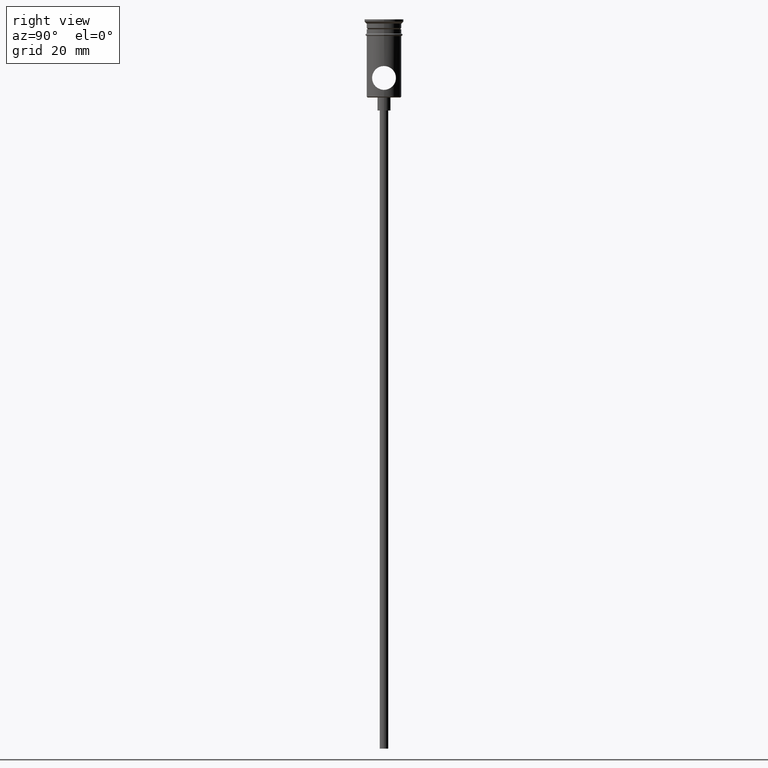
[diagram: clean part render]
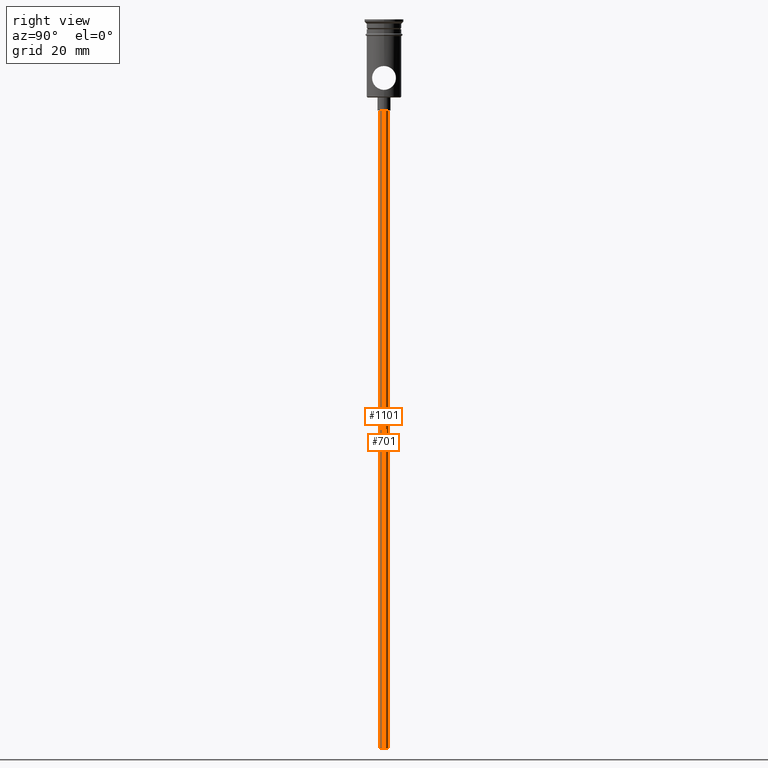
[diagram: same view with one multi-face feature highlighted, each face labeled with its STEP entity id]
A machine part, right view. The highlighted faces form ONE feature: a constant-radius fillet chain: 2 tangent blend faces with common blend radius 1 mm. The faces share edges in the B-rep.
Their STEP definitions:
[1] entity #701 (Cylinder):
#9 = CARTESIAN_POINT ( 'NONE',  ( -0.9999999999999997780, 1.224646799147352961E-16, -20.99999999999999645 ) ) ;
#33 = CARTESIAN_POINT ( 'NONE',  ( 0.000000000000000000, 0.000000000000000000, -20.99999999999999645 ) ) ;
#72 = CYLINDRICAL_SURFACE ( 'NONE', #389, 0.9999999999999997780 ) ;
#81 = CIRCLE ( 'NONE', #1299, 0.9999999999999997780 ) ;
#119 = EDGE_CURVE ( 'NONE', #181, #1153, #1279, .T. ) ;
#123 = CARTESIAN_POINT ( 'NONE',  ( -0.9999999999999997780, 1.224646799147352961E-16, -167.9999999999999716 ) ) ;
#148 = ORIENTED_EDGE ( 'NONE', *, *, #1403, .F. ) ;
#161 = EDGE_LOOP ( 'NONE', ( #546, #798, #509, #148 ) ) ;
#181 = VERTEX_POINT ( 'NONE', #123 ) ;
#194 = FACE_OUTER_BOUND ( 'NONE', #161, .T. ) ;
#195 = LINE ( 'NONE', #845, #271 ) ;
#225 = AXIS2_PLACEMENT_3D ( 'NONE', #350, #900, #991 ) ;
#257 = LINE ( 'NONE', #482, #268 ) ;
#268 = VECTOR ( 'NONE', #1349, 1000.000000000000000 ) ;
#271 = VECTOR ( 'NONE', #1288, 1000.000000000000000 ) ;
#350 = CARTESIAN_POINT ( 'NONE',  ( 0.000000000000000000, 0.000000000000000000, -167.9999999999999716 ) ) ;
#354 = DIRECTION ( 'NONE',  ( -1.000000000000000000, 0.000000000000000000, 0.000000000000000000 ) ) ;
#389 = AXIS2_PLACEMENT_3D ( 'NONE', #734, #1390, #630 ) ;
#478 = DIRECTION ( 'NONE',  ( 0.000000000000000000, 0.000000000000000000, -1.000000000000000000 ) ) ;
#482 = CARTESIAN_POINT ( 'NONE',  ( -0.9999999999999997780, 1.224646799147352961E-16, -167.9999999999999716 ) ) ;
#509 = ORIENTED_EDGE ( 'NONE', *, *, #899, .T. ) ;
#532 = CARTESIAN_POINT ( 'NONE',  ( 0.9999999999999997780, 0.000000000000000000, -167.9999999999999716 ) ) ;
#546 = ORIENTED_EDGE ( 'NONE', *, *, #119, .F. ) ;
#611 = EDGE_CURVE ( 'NONE', #181, #1317, #257, .T. ) ;
#630 = DIRECTION ( 'NONE',  ( 1.000000000000000000, 0.000000000000000000, 0.000000000000000000 ) ) ;
#701 = ADVANCED_FACE ( 'NONE', ( #194 ), #72, .T. ) ;
#734 = CARTESIAN_POINT ( 'NONE',  ( 0.000000000000000000, 0.000000000000000000, -167.9999999999999716 ) ) ;
#798 = ORIENTED_EDGE ( 'NONE', *, *, #611, .T. ) ;
#845 = CARTESIAN_POINT ( 'NONE',  ( 0.9999999999999997780, 0.000000000000000000, -167.9999999999999716 ) ) ;
#899 = EDGE_CURVE ( 'NONE', #1317, #1263, #81, .T. ) ;
#900 = DIRECTION ( 'NONE',  ( 0.000000000000000000, 0.000000000000000000, -1.000000000000000000 ) ) ;
#991 = DIRECTION ( 'NONE',  ( -1.000000000000000000, 0.000000000000000000, 0.000000000000000000 ) ) ;
#1096 = CARTESIAN_POINT ( 'NONE',  ( 0.9999999999999997780, 0.000000000000000000, -20.99999999999999645 ) ) ;
#1153 = VERTEX_POINT ( 'NONE', #532 ) ;
#1263 = VERTEX_POINT ( 'NONE', #1096 ) ;
#1279 = CIRCLE ( 'NONE', #225, 0.9999999999999997780 ) ;
#1288 = DIRECTION ( 'NONE',  ( -0.000000000000000000, -0.000000000000000000, 1.000000000000000000 ) ) ;
#1299 = AXIS2_PLACEMENT_3D ( 'NONE', #33, #478, #354 ) ;
#1317 = VERTEX_POINT ( 'NONE', #9 ) ;
#1349 = DIRECTION ( 'NONE',  ( -0.000000000000000000, -0.000000000000000000, 1.000000000000000000 ) ) ;
#1390 = DIRECTION ( 'NONE',  ( -0.000000000000000000, -0.000000000000000000, 1.000000000000000000 ) ) ;
#1403 = EDGE_CURVE ( 'NONE', #1153, #1263, #195, .T. ) ;
[2] entity #1101 (Cylinder):
#9 = CARTESIAN_POINT ( 'NONE',  ( -0.9999999999999997780, 1.224646799147352961E-16, -20.99999999999999645 ) ) ;
#35 = DIRECTION ( 'NONE',  ( -1.000000000000000000, 0.000000000000000000, 0.000000000000000000 ) ) ;
#63 = ORIENTED_EDGE ( 'NONE', *, *, #1262, .F. ) ;
#83 = DIRECTION ( 'NONE',  ( 0.000000000000000000, 0.000000000000000000, -1.000000000000000000 ) ) ;
#123 = CARTESIAN_POINT ( 'NONE',  ( -0.9999999999999997780, 1.224646799147352961E-16, -167.9999999999999716 ) ) ;
#130 = AXIS2_PLACEMENT_3D ( 'NONE', #519, #949, #814 ) ;
#173 = ORIENTED_EDGE ( 'NONE', *, *, #611, .F. ) ;
#181 = VERTEX_POINT ( 'NONE', #123 ) ;
#187 = ORIENTED_EDGE ( 'NONE', *, *, #1403, .T. ) ;
#195 = LINE ( 'NONE', #845, #271 ) ;
#257 = LINE ( 'NONE', #482, #268 ) ;
#268 = VECTOR ( 'NONE', #1349, 1000.000000000000000 ) ;
#271 = VECTOR ( 'NONE', #1288, 1000.000000000000000 ) ;
#299 = FACE_OUTER_BOUND ( 'NONE', #787, .T. ) ;
#482 = CARTESIAN_POINT ( 'NONE',  ( -0.9999999999999997780, 1.224646799147352961E-16, -167.9999999999999716 ) ) ;
#498 = ORIENTED_EDGE ( 'NONE', *, *, #562, .T. ) ;
#519 = CARTESIAN_POINT ( 'NONE',  ( 0.000000000000000000, 0.000000000000000000, -167.9999999999999716 ) ) ;
#532 = CARTESIAN_POINT ( 'NONE',  ( 0.9999999999999997780, 0.000000000000000000, -167.9999999999999716 ) ) ;
#562 = EDGE_CURVE ( 'NONE', #1263, #1317, #1205, .T. ) ;
#611 = EDGE_CURVE ( 'NONE', #181, #1317, #257, .T. ) ;
#707 = CIRCLE ( 'NONE', #1388, 0.9999999999999997780 ) ;
#743 = DIRECTION ( 'NONE',  ( -1.000000000000000000, 0.000000000000000000, 0.000000000000000000 ) ) ;
#787 = EDGE_LOOP ( 'NONE', ( #173, #63, #187, #498 ) ) ;
#814 = DIRECTION ( 'NONE',  ( 1.000000000000000000, 0.000000000000000000, 0.000000000000000000 ) ) ;
#845 = CARTESIAN_POINT ( 'NONE',  ( 0.9999999999999997780, 0.000000000000000000, -167.9999999999999716 ) ) ;
#922 = CARTESIAN_POINT ( 'NONE',  ( 0.000000000000000000, 0.000000000000000000, -20.99999999999999645 ) ) ;
#949 = DIRECTION ( 'NONE',  ( -0.000000000000000000, -0.000000000000000000, 1.000000000000000000 ) ) ;
#1020 = DIRECTION ( 'NONE',  ( 0.000000000000000000, 0.000000000000000000, -1.000000000000000000 ) ) ;
#1096 = CARTESIAN_POINT ( 'NONE',  ( 0.9999999999999997780, 0.000000000000000000, -20.99999999999999645 ) ) ;
#1101 = ADVANCED_FACE ( 'NONE', ( #299 ), #1154, .T. ) ;
#1153 = VERTEX_POINT ( 'NONE', #532 ) ;
#1154 = CYLINDRICAL_SURFACE ( 'NONE', #130, 0.9999999999999997780 ) ;
#1205 = CIRCLE ( 'NONE', #1272, 0.9999999999999997780 ) ;
#1262 = EDGE_CURVE ( 'NONE', #1153, #181, #707, .T. ) ;
#1263 = VERTEX_POINT ( 'NONE', #1096 ) ;
#1272 = AXIS2_PLACEMENT_3D ( 'NONE', #922, #1020, #35 ) ;
#1288 = DIRECTION ( 'NONE',  ( -0.000000000000000000, -0.000000000000000000, 1.000000000000000000 ) ) ;
#1316 = CARTESIAN_POINT ( 'NONE',  ( 0.000000000000000000, 0.000000000000000000, -167.9999999999999716 ) ) ;
#1317 = VERTEX_POINT ( 'NONE', #9 ) ;
#1349 = DIRECTION ( 'NONE',  ( -0.000000000000000000, -0.000000000000000000, 1.000000000000000000 ) ) ;
#1388 = AXIS2_PLACEMENT_3D ( 'NONE', #1316, #83, #743 ) ;
#1403 = EDGE_CURVE ( 'NONE', #1153, #1263, #195, .T. ) ;